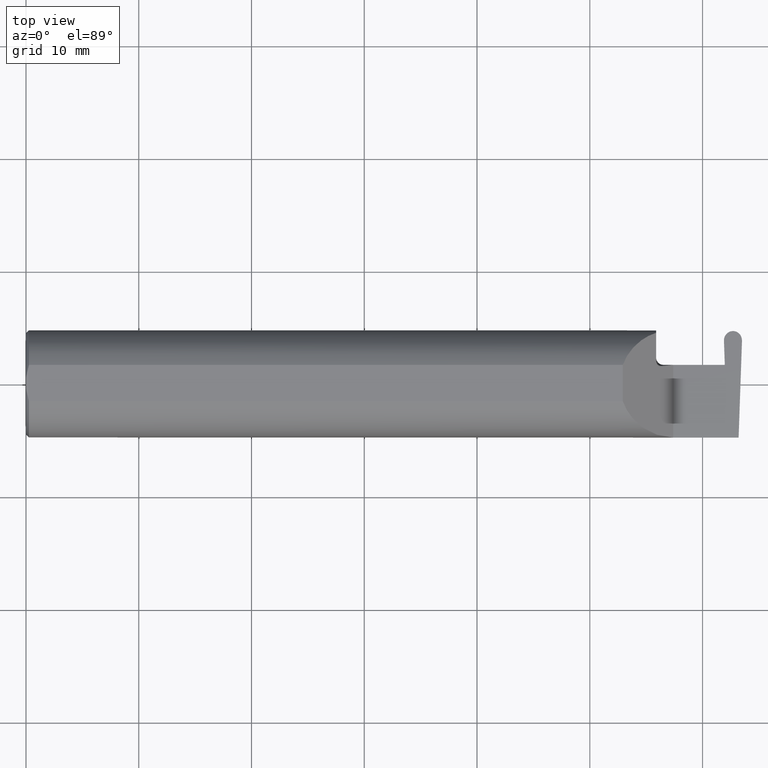
[diagram: clean part render]
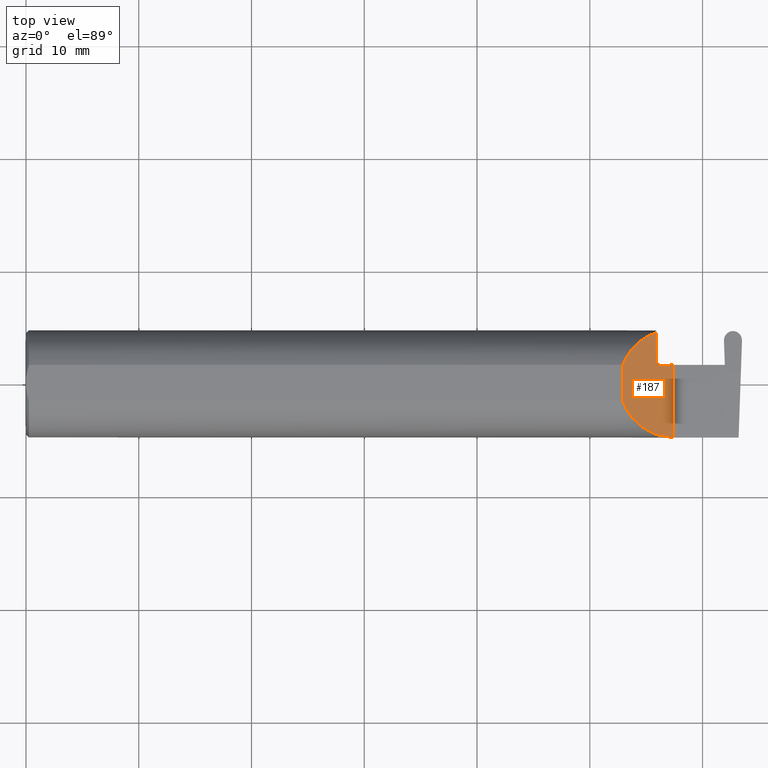
[diagram: same view with one face highlighted and labeled with its STEP entity id]
A machine part, top view. The second image highlights one B-rep face of the part: STEP entity #187.
In plain terms, the highlighted planar face has unit normal (-0.7071, 0, -0.7071).
Its self-contained STEP definition (entity closure, byte-faithful):
#11 = CARTESIAN_POINT ( 'NONE',  ( 2.260000000000000231, -0.2500000000000000555, 2.939152317953647352E-17 ) ) ;
#19 = DIRECTION ( 'NONE',  ( -0.000000000000000000, 1.000000000000000000, -0.000000000000000000 ) ) ;
#24 = CARTESIAN_POINT ( 'NONE',  ( 2.083649999999998670, -0.2500000000000000555, 0.1763499999999999235 ) ) ;
#26 = ORIENTED_EDGE ( 'NONE', *, *, #322, .F. ) ;
#30 = FACE_OUTER_BOUND ( 'NONE', #463, .T. ) ;
#37 = CARTESIAN_POINT ( 'NONE',  ( 2.214233757172356043, 0.06188798250606979828, 0.04576624282764353568 ) ) ;
#42 = CARTESIAN_POINT ( 'NONE',  ( 2.200000000000000178, 0.08104282222773610822, 0.05999999999999957451 ) ) ;
#44 = VERTEX_POINT ( 'NONE', #61 ) ;
#45 = CARTESIAN_POINT ( 'NONE',  ( 2.211575684638518169, 0.06248591091235530803, 0.04842431536148222859 ) ) ;
#60 = CARTESIAN_POINT ( 'NONE',  ( 2.083649999999998670, -0.06325108694718283020, 0.1763499999999999235 ) ) ;
#61 = CARTESIAN_POINT ( 'NONE',  ( 2.083649999999998670, 0.06325108694718283020, 0.1763499999999999235 ) ) ;
#100 = CARTESIAN_POINT ( 'NONE',  ( 2.204146777195072016, 0.06733032564037060019, 0.05585322280492721614 ) ) ;
#132 = VERTEX_POINT ( 'NONE', #628 ) ;
#157 = ORIENTED_EDGE ( 'NONE', *, *, #613, .F. ) ;
#184 = CARTESIAN_POINT ( 'NONE',  ( 2.236476718690367793, 0.06526343940705725544, 0.02352328130963212902 ) ) ;
#187 = ADVANCED_FACE ( 'NONE', ( #30 ), #511, .F. ) ;
#198 = CARTESIAN_POINT ( 'NONE',  ( 2.225000000000000089, 0.06250952145814826777, 0.03500000000000007272 ) ) ;
#199 = CARTESIAN_POINT ( 'NONE',  ( 2.260000000000000231, -0.2500000000000000555, 2.939152317953647352E-17 ) ) ;
#202 = VECTOR ( 'NONE', #619, 39.37007874015748143 ) ;
#214 = ORIENTED_EDGE ( 'NONE', *, *, #656, .T. ) ;
#244 = LINE ( 'NONE', #24, #506 ) ;
#262 = DIRECTION ( 'NONE',  ( -0.7071067811865509034, 0.000000000000000000, 0.7071067811865440200 ) ) ;
#266 =( BOUNDED_CURVE ( )  B_SPLINE_CURVE ( 3, ( #445, #560, #555, #395 ),
 .UNSPECIFIED., .F., .F. ) 
 B_SPLINE_CURVE_WITH_KNOTS ( ( 4, 4 ),
 ( 4.712388980384688786, 5.938809479923471635 ),
 .UNSPECIFIED. ) 
 CURVE ( )  GEOMETRIC_REPRESENTATION_ITEM ( )  RATIONAL_B_SPLINE_CURVE ( ( 1.000000000000000000, 0.8785364999009659392, 0.8785364999009659392, 1.000000000000000000 ) ) 
 REPRESENTATION_ITEM ( '' )  );
#267 = CARTESIAN_POINT ( 'NONE',  ( 2.199999999999999734, 0.07723724220654795691, 0.05999999999999976186 ) ) ;
#315 = CARTESIAN_POINT ( 'NONE',  ( 2.200000000000000178, 0.1774824568795465018, 0.05999999999999961614 ) ) ;
#321 = CARTESIAN_POINT ( 'NONE',  ( 2.222331837506049901, 0.06186927743178083361, 0.03766816249395005256 ) ) ;
#322 = EDGE_CURVE ( 'NONE', #44, #669, #341, .T. ) ;
#323 = CARTESIAN_POINT ( 'NONE',  ( 2.103305020982357387, 0.1180511404724818164, 0.1566949790176410395 ) ) ;
#341 =( BOUNDED_CURVE ( )  B_SPLINE_CURVE ( 3, ( #484, #323, #700, #536 ),
 .UNSPECIFIED., .F., .F. ) 
 B_SPLINE_CURVE_WITH_KNOTS ( ( 4, 4 ),
 ( 0.3443758272561143752, 1.244796402594305018 ),
 .UNSPECIFIED. ) 
 CURVE ( )  GEOMETRIC_REPRESENTATION_ITEM ( )  RATIONAL_B_SPLINE_CURVE ( ( 1.000000000000000000, 0.9335704097038357574, 0.9335704097038357574, 1.000000000000000000 ) ) 
 REPRESENTATION_ITEM ( '' )  );
#361 = AXIS2_PLACEMENT_3D ( 'NONE', #199, #364, #262 ) ;
#364 = DIRECTION ( 'NONE',  ( -0.7071067811865441310, 0.000000000000000000, -0.7071067811865510144 ) ) ;
#382 = VERTEX_POINT ( 'NONE', #636 ) ;
#395 = CARTESIAN_POINT ( 'NONE',  ( 2.083649999999998670, -0.06325108694718283020, 0.1763499999999999235 ) ) ;
#401 = CARTESIAN_POINT ( 'NONE',  ( 2.260000000000000231, 0.06664999999999991764, 2.939152317953647352E-17 ) ) ;
#407 =( BOUNDED_CURVE ( )  B_SPLINE_CURVE ( 3, ( #198, #184, #414, #401 ),
 .UNSPECIFIED., .F., .F. ) 
 B_SPLINE_CURVE_WITH_KNOTS ( ( 4, 4 ),
 ( 1.335292090074097437, 1.570796326794897002 ),
 .UNSPECIFIED. ) 
 CURVE ( )  GEOMETRIC_REPRESENTATION_ITEM ( )  RATIONAL_B_SPLINE_CURVE ( ( 1.000000000000000000, 0.9953834841226971708, 0.9953834841226971708, 1.000000000000000000 ) ) 
 REPRESENTATION_ITEM ( '' )  );
#414 = CARTESIAN_POINT ( 'NONE',  ( 2.248197494504676097, 0.06665000000000000091, 0.01180250549532441649 ) ) ;
#432 = CARTESIAN_POINT ( 'NONE',  ( 2.200842198961673102, 0.07338839382613032702, 0.05915780103832719850 ) ) ;
#445 = CARTESIAN_POINT ( 'NONE',  ( 2.260000000000000231, -0.1873499999999999888, 2.939152317953647352E-17 ) ) ;
#447 = EDGE_CURVE ( 'NONE', #132, #454, #266, .T. ) ;
#454 = VERTEX_POINT ( 'NONE', #60 ) ;
#458 = LINE ( 'NONE', #468, #202 ) ;
#463 = EDGE_LOOP ( 'NONE', ( #157, #589, #541, #26, #483, #574, #214 ) ) ;
#468 = CARTESIAN_POINT ( 'NONE',  ( 2.200000000000000178, -0.2500000000000001110, 0.05999999999999940103 ) ) ;
#483 = ORIENTED_EDGE ( 'NONE', *, *, #608, .F. ) ;
#484 = CARTESIAN_POINT ( 'NONE',  ( 2.083649999999998670, 0.06325108694718283020, 0.1763499999999999235 ) ) ;
#487 = VECTOR ( 'NONE', #19, 39.37007874015748143 ) ;
#505 = CARTESIAN_POINT ( 'NONE',  ( 2.225000000000000089, 0.06250952145814826777, 0.03500000000000007272 ) ) ;
#506 = VECTOR ( 'NONE', #667, 39.37007874015748143 ) ;
#511 = PLANE ( 'NONE',  #361 ) ;
#517 = LINE ( 'NONE', #11, #487 ) ;
#526 = CARTESIAN_POINT ( 'NONE',  ( 2.219643712645606559, 0.06157137645965355538, 0.04035628735439349829 ) ) ;
#530 = B_SPLINE_CURVE_WITH_KNOTS ( 'NONE', 3,
 ( #42, #267, #432, #100, #641, #45, #37, #526, #321, #692 ),
 .UNSPECIFIED., .F., .F.,
 ( 4, 2, 2, 2, 4 ),
 ( 0.0002788109322551137045, 0.0005687008269983689825, 0.0008585907217416242606, 0.001148480616484879539, 0.001438370511228134925 ),
 .UNSPECIFIED. ) ;
#536 = CARTESIAN_POINT ( 'NONE',  ( 2.200000000000000178, 0.1774824568795465018, 0.05999999999999961614 ) ) ;
#537 = VERTEX_POINT ( 'NONE', #505 ) ;
#541 = ORIENTED_EDGE ( 'NONE', *, *, #618, .F. ) ;
#555 = CARTESIAN_POINT ( 'NONE',  ( 2.111272250967329622, -0.1402645296119147678, 0.1487277490326685825 ) ) ;
#560 = CARTESIAN_POINT ( 'NONE',  ( 2.178182770154592163, -0.1873500000000000443, 0.08181722984540684696 ) ) ;
#574 = ORIENTED_EDGE ( 'NONE', *, *, #447, .F. ) ;
#589 = ORIENTED_EDGE ( 'NONE', *, *, #703, .F. ) ;
#608 = EDGE_CURVE ( 'NONE', #454, #44, #244, .T. ) ;
#613 = EDGE_CURVE ( 'NONE', #537, #647, #407, .T. ) ;
#618 = EDGE_CURVE ( 'NONE', #669, #382, #458, .T. ) ;
#619 = DIRECTION ( 'NONE',  ( 5.045929899059384297E-16, -1.000000000000000000, -5.045929899059334993E-16 ) ) ;
#626 = CARTESIAN_POINT ( 'NONE',  ( 2.260000000000000231, 0.06664999999999991764, 2.939152317953647352E-17 ) ) ;
#628 = CARTESIAN_POINT ( 'NONE',  ( 2.260000000000000231, -0.1873499999999999888, 2.939152317953647352E-17 ) ) ;
#636 = CARTESIAN_POINT ( 'NONE',  ( 2.200000000000000178, 0.08104282222773610822, 0.05999999999999957451 ) ) ;
#641 = CARTESIAN_POINT ( 'NONE',  ( 2.206491315391052144, 0.06519110945230537080, 0.05350868460894757372 ) ) ;
#647 = VERTEX_POINT ( 'NONE', #626 ) ;
#656 = EDGE_CURVE ( 'NONE', #132, #647, #517, .T. ) ;
#667 = DIRECTION ( 'NONE',  ( 0.000000000000000000, 1.000000000000000000, 0.000000000000000000 ) ) ;
#669 = VERTEX_POINT ( 'NONE', #315 ) ;
#692 = CARTESIAN_POINT ( 'NONE',  ( 2.225000000000000089, 0.06250952145814826777, 0.03500000000000007272 ) ) ;
#700 = CARTESIAN_POINT ( 'NONE',  ( 2.144848040052163896, 0.1588376980957759976, 0.1151519599478345868 ) ) ;
#703 = EDGE_CURVE ( 'NONE', #382, #537, #530, .T. ) ;